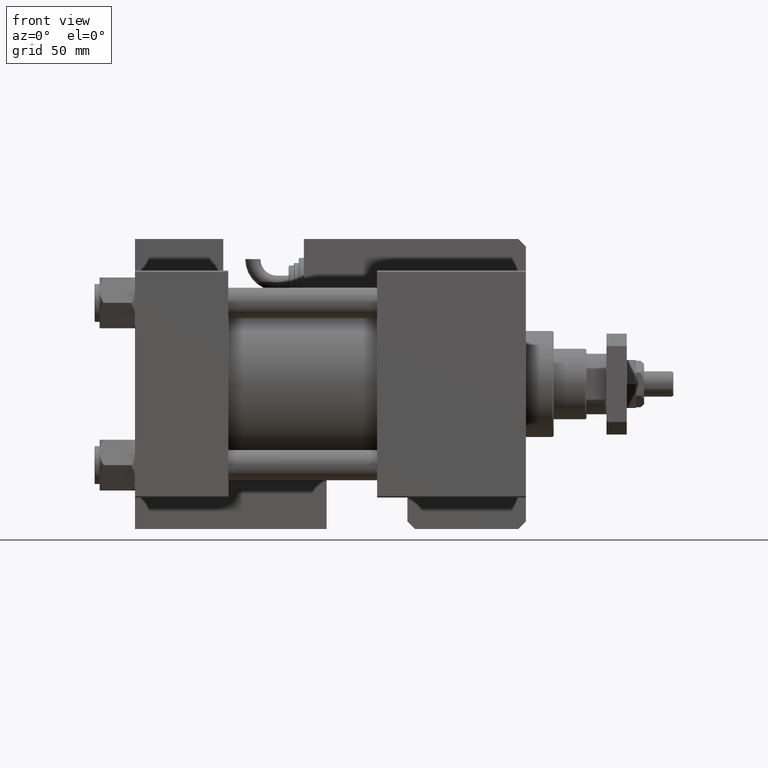
[diagram: clean part render]
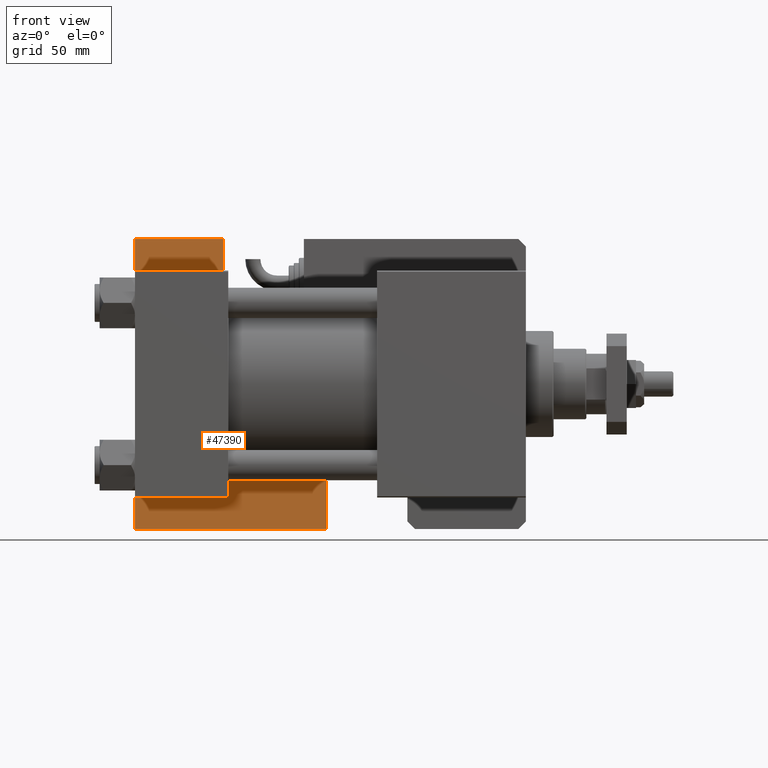
[diagram: same view with one face highlighted and labeled with its STEP entity id]
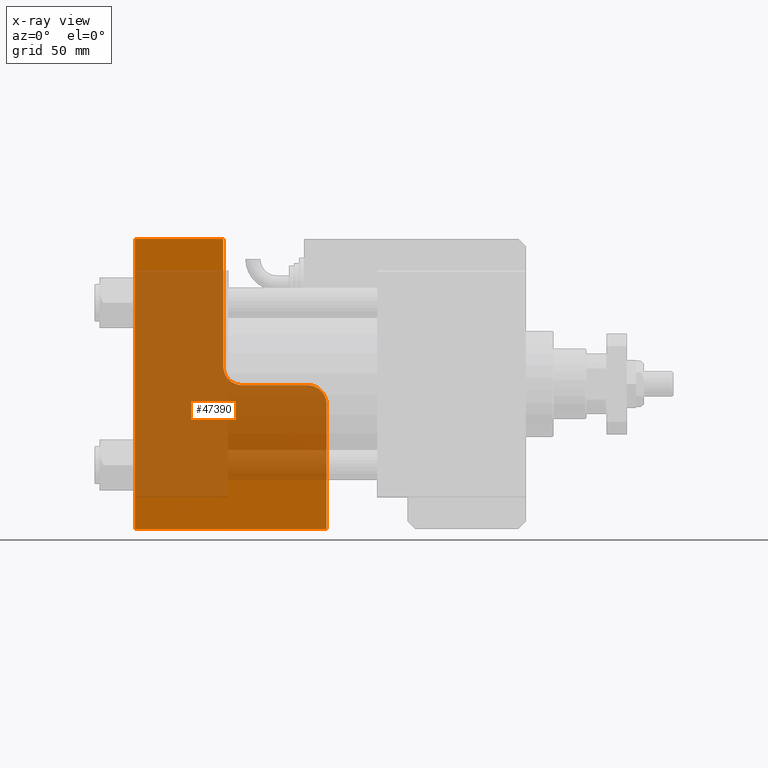
[diagram: x-ray of the same camera — body ghosted, the highlighted face saturated]
A machine part, front view. The second image highlights one B-rep face of the part: STEP entity #47390.
The next image is the same camera in x-ray: the body ghosted, the highlighted face saturated — about 74% of this face is hidden behind the body in this view.
In plain terms, the highlighted planar face has unit normal (0, 1, 0).
Its self-contained STEP definition (entity closure, byte-faithful):
#515 = DIRECTION ( 'NONE',  ( 2.392722035830083409E-16, -1.000000000000000000, 0.000000000000000000 ) ) ;
#633 = VERTEX_POINT ( 'NONE', #37779 ) ;
#3499 = EDGE_CURVE ( 'NONE', #10495, #54670, #46753, .T. ) ;
#3756 = DIRECTION ( 'NONE',  ( 2.434699615406041273E-16, -1.000000000000000000, 0.000000000000000000 ) ) ;
#4082 = AXIS2_PLACEMENT_3D ( 'NONE', #35645, #9076, #35087 ) ;
#4286 = VERTEX_POINT ( 'NONE', #33322 ) ;
#4591 = ORIENTED_EDGE ( 'NONE', *, *, #41965, .F. ) ;
#4991 = CARTESIAN_POINT ( 'NONE',  ( -34.99999999999999289, 114.9999999999999716, 0.000000000000000000 ) ) ;
#5054 = CARTESIAN_POINT ( 'NONE',  ( -68.50000000000005684, 49.50000000000008527, 0.000000000000000000 ) ) ;
#6070 = CARTESIAN_POINT ( 'NONE',  ( -68.50000000000005684, 57.00000000000008527, 0.000000000000000000 ) ) ;
#6128 = EDGE_CURVE ( 'NONE', #9920, #633, #15954, .T. ) ;
#8700 = ORIENTED_EDGE ( 'NONE', *, *, #6128, .F. ) ;
#9076 = DIRECTION ( 'NONE',  ( 0.000000000000000000, 0.000000000000000000, 1.000000000000000000 ) ) ;
#9250 = CARTESIAN_POINT ( 'NONE',  ( -42.49999999999997868, 57.00000000000009237, 0.000000000000000000 ) ) ;
#9920 = VERTEX_POINT ( 'NONE', #42766 ) ;
#10021 = DIRECTION ( 'NONE',  ( -1.000000000000000000, -1.189524669241239460E-15, 0.000000000000000000 ) ) ;
#10495 = VERTEX_POINT ( 'NONE', #39971 ) ;
#11942 = VECTOR ( 'NONE', #10021, 1000.000000000000000 ) ;
#12015 = VECTOR ( 'NONE', #32667, 1000.000000000000000 ) ;
#12630 = ORIENTED_EDGE ( 'NONE', *, *, #51669, .T. ) ;
#15195 = DIRECTION ( 'NONE',  ( 1.000000000000000000, 0.000000000000000000, 0.000000000000000000 ) ) ;
#15372 = CARTESIAN_POINT ( 'NONE',  ( -34.99999999999997868, 57.00000000000009237, 0.000000000000000000 ) ) ;
#15626 = CARTESIAN_POINT ( 'NONE',  ( 0.000000000000000000, 115.0000000000000142, 0.000000000000000000 ) ) ;
#15954 = LINE ( 'NONE', #20216, #12015 ) ;
#16103 = VECTOR ( 'NONE', #515, 1000.000000000000000 ) ;
#16782 = CIRCLE ( 'NONE', #46646, 7.500000000000000000 ) ;
#16881 = CARTESIAN_POINT ( 'NONE',  ( -76.00000000000004263, 0.000000000000000000, 0.000000000000000000 ) ) ;
#19034 = VERTEX_POINT ( 'NONE', #9250 ) ;
#20216 = CARTESIAN_POINT ( 'NONE',  ( 0.000000000000000000, 0.000000000000000000, 0.000000000000000000 ) ) ;
#20552 = DIRECTION ( 'NONE',  ( 0.000000000000000000, 0.000000000000000000, 1.000000000000000000 ) ) ;
#20738 = DIRECTION ( 'NONE',  ( -1.000000000000000000, -1.692413147294442765E-16, 0.000000000000000000 ) ) ;
#20824 = DIRECTION ( 'NONE',  ( 1.000000000000000000, 0.000000000000000000, -0.000000000000000000 ) ) ;
#21196 = LINE ( 'NONE', #15626, #11942 ) ;
#22245 = ORIENTED_EDGE ( 'NONE', *, *, #53468, .T. ) ;
#22294 = DIRECTION ( 'NONE',  ( -0.000000000000000000, -0.000000000000000000, -1.000000000000000000 ) ) ;
#22843 = ORIENTED_EDGE ( 'NONE', *, *, #52213, .F. ) ;
#23101 = LINE ( 'NONE', #48578, #16103 ) ;
#23334 = ORIENTED_EDGE ( 'NONE', *, *, #3499, .F. ) ;
#23392 = ORIENTED_EDGE ( 'NONE', *, *, #34151, .F. ) ;
#25886 = FACE_OUTER_BOUND ( 'NONE', #45610, .T. ) ;
#28296 = AXIS2_PLACEMENT_3D ( 'NONE', #47417, #20552, #20824 ) ;
#29853 = ORIENTED_EDGE ( 'NONE', *, *, #32506, .F. ) ;
#31407 = VECTOR ( 'NONE', #20738, 1000.000000000000000 ) ;
#32506 = EDGE_CURVE ( 'NONE', #19034, #46637, #50176, .T. ) ;
#32667 = DIRECTION ( 'NONE',  ( 0.000000000000000000, 1.000000000000000000, 0.000000000000000000 ) ) ;
#33322 = CARTESIAN_POINT ( 'NONE',  ( -34.99999999999997868, 64.50000000000008527, 0.000000000000000000 ) ) ;
#33831 = PLANE ( 'NONE',  #28296 ) ;
#34151 = EDGE_CURVE ( 'NONE', #42352, #4286, #23101, .T. ) ;
#34783 = CIRCLE ( 'NONE', #4082, 7.500000000000000000 ) ;
#35087 = DIRECTION ( 'NONE',  ( 1.000000000000000000, 0.000000000000000000, 0.000000000000000000 ) ) ;
#35645 = CARTESIAN_POINT ( 'NONE',  ( -42.49999999999997868, 64.50000000000008527, 0.000000000000000000 ) ) ;
#37779 = CARTESIAN_POINT ( 'NONE',  ( 0.000000000000000000, 115.0000000000000142, 0.000000000000000000 ) ) ;
#39552 = DIRECTION ( 'NONE',  ( 1.000000000000000000, 0.000000000000000000, 0.000000000000000000 ) ) ;
#39971 = CARTESIAN_POINT ( 'NONE',  ( -76.00000000000005684, 49.50000000000008527, 0.000000000000000000 ) ) ;
#41236 = LINE ( 'NONE', #53975, #54676 ) ;
#41965 = EDGE_CURVE ( 'NONE', #633, #42352, #21196, .T. ) ;
#42352 = VERTEX_POINT ( 'NONE', #4991 ) ;
#42766 = CARTESIAN_POINT ( 'NONE',  ( 0.000000000000000000, 0.000000000000000000, 0.000000000000000000 ) ) ;
#43614 = CARTESIAN_POINT ( 'NONE',  ( -76.00000000000005684, 57.00000000000008527, 0.000000000000000000 ) ) ;
#45610 = EDGE_LOOP ( 'NONE', ( #23334, #22245, #29853, #12630, #23392, #4591, #8700, #22843 ) ) ;
#46637 = VERTEX_POINT ( 'NONE', #6070 ) ;
#46646 = AXIS2_PLACEMENT_3D ( 'NONE', #5054, #22294, #39552 ) ;
#46753 = LINE ( 'NONE', #43614, #53280 ) ;
#47390 = ADVANCED_FACE ( 'NONE', ( #25886 ), #33831, .F. ) ;
#47417 = CARTESIAN_POINT ( 'NONE',  ( 0.000000000000000000, 0.000000000000000000, 0.000000000000000000 ) ) ;
#48578 = CARTESIAN_POINT ( 'NONE',  ( -34.99999999999999289, 114.9999999999999716, 0.000000000000000000 ) ) ;
#50176 = LINE ( 'NONE', #15372, #31407 ) ;
#51669 = EDGE_CURVE ( 'NONE', #19034, #4286, #34783, .T. ) ;
#52213 = EDGE_CURVE ( 'NONE', #54670, #9920, #41236, .T. ) ;
#53280 = VECTOR ( 'NONE', #3756, 1000.000000000000000 ) ;
#53468 = EDGE_CURVE ( 'NONE', #10495, #46637, #16782, .T. ) ;
#53975 = CARTESIAN_POINT ( 'NONE',  ( -76.00000000000004263, 0.000000000000000000, 0.000000000000000000 ) ) ;
#54670 = VERTEX_POINT ( 'NONE', #16881 ) ;
#54676 = VECTOR ( 'NONE', #15195, 1000.000000000000000 ) ;